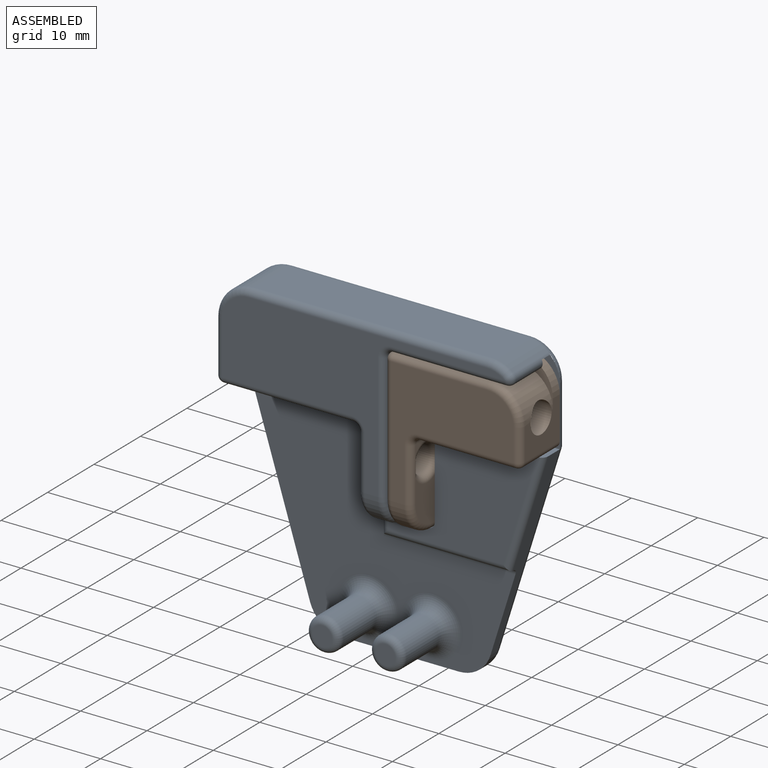
[diagram: assembled view]
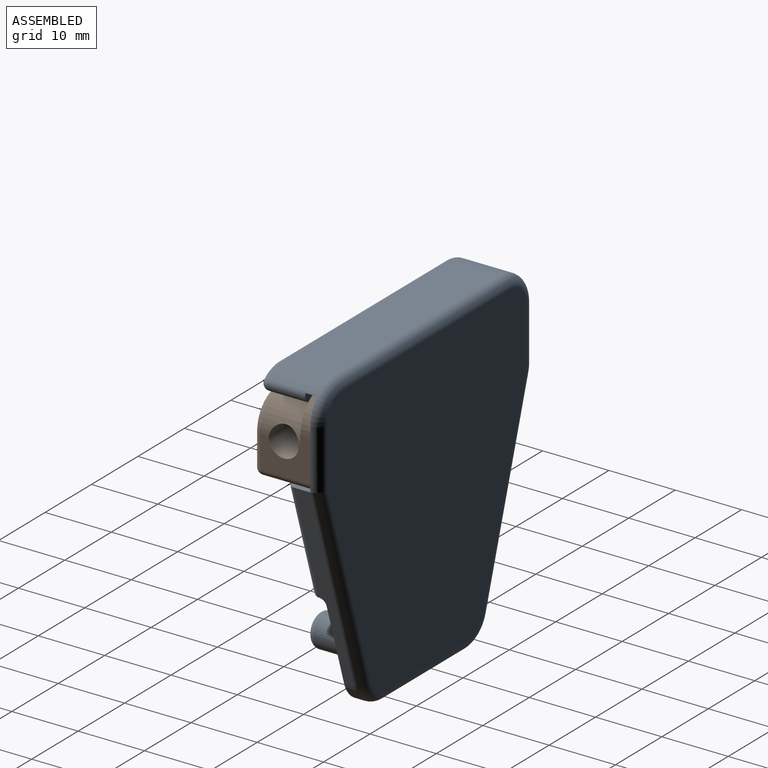
[diagram: assembled view, second angle]
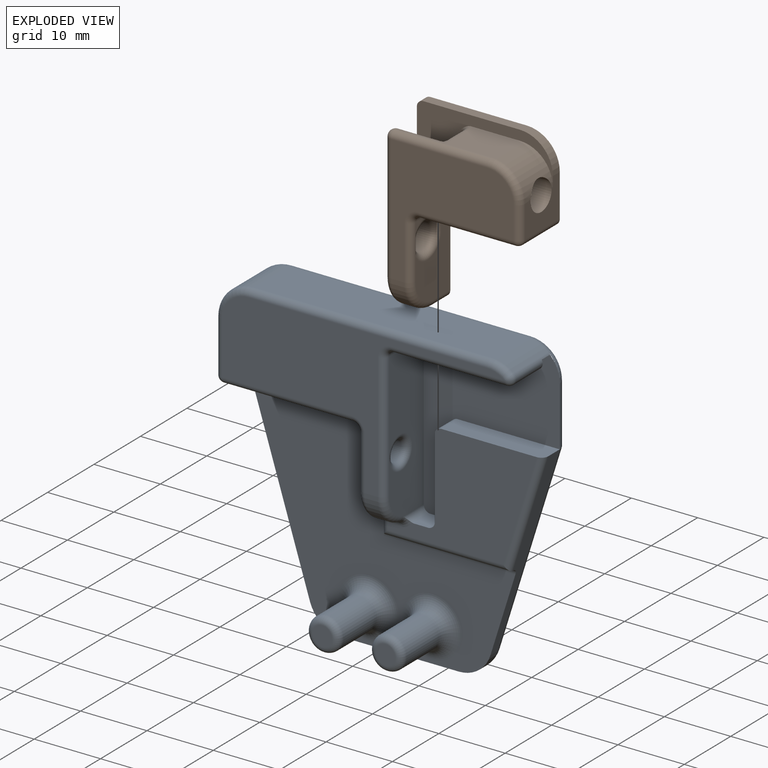
[diagram: exploded view]
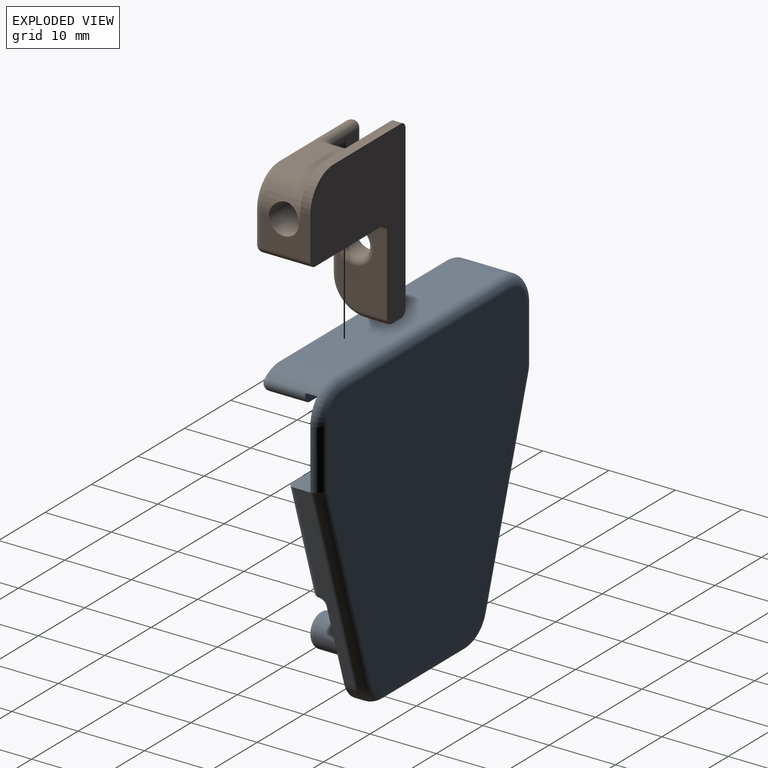
[diagram: exploded view, second angle]
ASSEMBLY  parts=2 mates=3
PART A: 100 faces, bbox 48.5x13.1x48.5 mm
  f0: plane 10.92x5mm, normal (-1,0,0), area 32.5mm2, adj f56,f57,f70,f83,f86
  f1: plane 12x5mm, normal (0,0,-1), area 60mm2, adj f50,f51,f59,f76
  f2: plane 17.15x5.75mm, normal (0,0,-1), area 98.6mm2, adj f19,f49,f52,f66
  f3: plane 29.27x9.18mm, normal (-0.95,0,-0.3), area 46mm2, adj f16,f30,f32,f39,f75
  f4: plane 17.65x1.5mm, normal (0,0,-1), area 26.5mm2, adj f16,f32,f33,f43
  f5: plane 30.13x9.53mm, normal (0.95,0,-0.3), area 65.2mm2, adj f10,f16,f33,f47,f79,f80
  f6: plane 42.65x22mm, normal (0,-1,0), area 318.6mm2, adj f31,f57,f58,f59,f61,f62,f63,f64
  f7: plane 36x7.5mm, normal (0,0,1), area 270mm2, adj f34,f35,f44,f63
  f8: plane 8.24x7.5mm, normal (-1,0,0), area 27.4mm2, adj f30,f35,f40,f50,f61,f72,f75
  f9: plane 44.5x43mm, normal (0,1,0), area 1580.2mm2, adj f38,f39,f40,f41,f42,f43,f44,f45
  f10: plane 15.53x3.63mm, normal (0,0,1), area 53.7mm2, adj f5,f14,f17,f55,f79
  f11: plane 25.5x7.5mm, normal (1,0,0), area 153.8mm2, adj f14,f18,f19,f52,f53,f68,f69,f71
  f12: plane 3.5x2.1mm, normal (0,0,1), area 7.3mm2, adj f14,f17,f53,f54
  f13: plane 12x3.5mm, normal (-1,0,0), area 42mm2, adj f14,f17,f54,f55
  f14: plane 26.75x20.5mm, normal (0,-1,0), area 311.9mm2, adj f10,f11,f12,f13,f18,f46,f48,f49
  f15: plane 14x5mm, normal (-1,0,0), area 39mm2, adj f57,f70,f83,f89,f90,f92
  f16: plane 43.5x40.09mm, normal (0,-1,0), area 689.8mm2, adj f3,f4,f5,f32,f33,f36,f37,f75
  f17: plane 22.45x16mm, normal (0,-1,0), area 216.8mm2, adj f10,f12,f13,f53,f54,f55,f79,f81
  f18: plane 19.01x1.75mm, normal (0,0,-1), area 33.3mm2, adj f11,f14,f19,f49
  f19: plane 19.15x2.5mm, normal (0,1,0), area 28.7mm2, adj f2,f11,f18,f49,f52
  f20: cylinder r=2.5mm len=7mm, axis (0,1,0), area 110mm2, adj f37,f74
  f21: plane 3x3mm, normal (0,-1,0), area 7.1mm2, adj f74
  f22: cylinder r=2.5mm len=7mm, axis (0,1,0), area 110mm2, adj f36,f73
  f23: plane 3x3mm, normal (0,-1,0), area 7.1mm2, adj f73
  f24: cylinder r=2.25mm len=9mm, axis (-1,0,0), area 127.2mm2, adj f25,f72
  f25: plane 4.5x4.5mm, normal (-1,0,0), area 12.8mm2, adj f24,f99
  f26: plane 9x5.5mm, normal (0,1,0), area 49.5mm2, adj f59,f87,f89,f96
  f27: plane 9x3mm, normal (1,0,0), area 23.9mm2, adj f51,f78,f87,f97,f99
  f28: plane 5.5x3mm, normal (0,0,-1), area 16.5mm2, adj f92,f93,f96,f97
  f29: cylinder r=1.5mm len=3mm, axis (1,0,0), area 18.8mm2, adj f70,f71
  f30: cylinder r=5mm len=2.27mm, axis (0,1,0), area 2.9mm2, adj f3,f8,f38,f75
  f31: cylinder r=5mm len=4.93mm, axis (1,0,0), area 14mm2, adj f6,f56,f69,f84
  f32: cylinder r=5mm len=4.77mm, axis (0,1,0), area 9.5mm2, adj f3,f4,f16,f41
  f33: cylinder r=5mm len=4.77mm, axis (0,-1,0), area 9.5mm2, adj f4,f5,f16,f45
  f34: cylinder r=5mm len=7.5mm, axis (0,1,0), area 27.1mm2, adj f7,f46,f49,f64
  f35: cylinder r=5mm len=7.5mm, axis (0,-1,0), area 58.9mm2, adj f7,f8,f42,f62
  f36: torus R=4.5mm, axis (0,-1,0), area 63.7mm2, adj f16,f22
  f37: torus R=4.5mm, axis (0,-1,0), area 63.7mm2, adj f16,f20
  f38: torus R=3.5mm, axis (0,-1,0), area 3.2mm2, adj f9,f30,f39,f40
  f39: cylinder r=1.5mm len=29.71mm, axis (0.3,0,-0.95), area 72.3mm2, adj f3,f9,f38,f41
  f40: cylinder r=1.5mm len=8.23mm, axis (0,0,-1), area 19.4mm2, adj f8,f9,f38,f42
  f41: torus R=3.5mm, axis (0,-1,0), area 13.3mm2, adj f9,f32,f39,f43
  f42: torus R=3.5mm, axis (0,-1,0), area 16.5mm2, adj f9,f35,f40,f44
  f43: cylinder r=1.5mm len=17.65mm, axis (1,0,0), area 41.6mm2, adj f4,f9,f41,f45
  f44: cylinder r=1.5mm len=36mm, axis (-1,0,0), area 84.8mm2, adj f7,f9,f42,f46
  f45: torus R=3.5mm, axis (0,-1,0), area 13.3mm2, adj f9,f33,f43,f47
  f46: torus R=3.5mm, axis (0,-1,0), area 16.5mm2, adj f9,f14,f34,f44,f48
  f47: cylinder r=1.5mm len=30.44mm, axis (0.3,0,0.95), area 73.8mm2, adj f5,f9,f45,f48
  f48: cylinder r=1.5mm len=9mm, axis (0,0,1), area 20.9mm2, adj f9,f14,f46,f47
  f49: cylinder r=1mm len=7.5mm, axis (0,1,0), area 14.5mm2, adj f2,f14,f18,f19,f34,f65
  f50: cylinder r=1mm len=5mm, axis (0,-1,0), area 7.9mm2, adj f1,f8,f60,f75
  f51: cylinder r=1mm len=5mm, axis (0,-1,0), area 6.3mm2, adj f1,f27,f77,f88
  f52: cylinder r=1mm len=5.75mm, axis (0,1,0), area 9mm2, adj f2,f11,f19,f67
  f53: cylinder r=1mm len=4.38mm, axis (0,1,0), area 5.9mm2, adj f11,f12,f14,f17,f81
  f54: cylinder r=1mm len=3.5mm, axis (0,1,0), area 5.5mm2, adj f12,f13,f14,f17
  f55: cylinder r=1mm len=3.5mm, axis (0,1,0), area 5.5mm2, adj f10,f13,f14,f17
  f56: torus R=4mm, axis (-1,0,0), area 10.2mm2, adj f0,f31,f57,f86
  f57: cylinder r=1mm len=8mm, axis (0,0,-1), area 12.6mm2, adj f0,f6,f15,f56,f58
  f58: torus R=2mm, axis (0,-1,0), area 3.4mm2, adj f6,f57,f59,f90
  f59: cylinder r=1mm len=19.5mm, axis (1,0,0), area 40.8mm2, adj f1,f6,f26,f58,f60,f88,f90
  f60: sphere r=1mm, area 1.6mm2, adj f50,f59,f61
  f61: cylinder r=1mm len=8mm, axis (0,0,1), area 12.6mm2, adj f6,f8,f60,f62
  f62: torus R=4mm, axis (0,-1,0), area 11.4mm2, adj f6,f35,f61,f63
  f63: cylinder r=1mm len=36mm, axis (1,0,0), area 56.5mm2, adj f6,f7,f62,f64
  f64: torus R=4mm, axis (0,-1,0), area 5.3mm2, adj f6,f34,f63,f65
  f65: sphere r=1mm, area 2.4mm2, adj f49,f64,f66
  f66: cylinder r=1mm len=17.15mm, axis (1,0,0), area 26.9mm2, adj f2,f6,f65,f67
  f67: torus R=2mm, axis (0,-1,0), area 3.4mm2, adj f6,f52,f66,f68
  f68: cylinder r=1mm len=19mm, axis (0,0,1), area 29.8mm2, adj f6,f11,f67,f69
  f69: torus R=4mm, axis (-1,0,0), area 9.9mm2, adj f11,f31,f68,f81
  f70: torus R=2.5mm, axis (-1,0,0), area 18.4mm2, adj f0,f15,f29
  f71: torus R=2.5mm, axis (-1,0,0), area 18.4mm2, adj f11,f29
  f72: torus R=3.25mm, axis (1,0,0), area 25.8mm2, adj f8,f24
  f73: torus R=1.5mm, axis (0,-1,0), area 21.1mm2, adj f22,f23
  f74: torus R=1.5mm, axis (0,-1,0), area 21.1mm2, adj f20,f21
  f75: torus R=2mm, axis (0,-1,0), area 1.7mm2, adj f3,f8,f16,f30,f50,f76
  f76: cylinder r=1mm len=12mm, axis (-1,0,0), area 18.8mm2, adj f1,f16,f75,f77
  f77: torus R=2mm, axis (0,-1,0), area 3.4mm2, adj f16,f51,f76,f78
  f78: cylinder r=1mm len=9mm, axis (0,0,-1), area 14.1mm2, adj f16,f27,f77,f95
  f79: cylinder r=1mm len=17.3mm, axis (-0.3,0,-0.95), area 27.2mm2, adj f5,f10,f17,f82
  f80: cylinder r=1mm len=20.17mm, axis (1,0,0), area 30.7mm2, adj f5,f16,f82,f83
  f81: bspline ~2.36x2.27mm, area 2.2mm2, adj f11,f17,f53,f69,f84
  f82: cylinder r=1mm len=19.17mm, axis (-1,0,0), area 28.8mm2, adj f17,f79,f80,f85
  f83: cylinder r=1mm len=28mm, axis (0,0,1), area 43.2mm2, adj f0,f15,f16,f80,f85,f91
  f84: cylinder r=1mm len=2mm, axis (1,0,0), area 2.8mm2, adj f17,f31,f81,f86
  f85: cylinder r=1mm len=2.08mm, axis (0,0,-1), area 2.5mm2, adj f17,f82,f83,f86
  f86: torus R=2mm, axis (-1,0,0), area 3mm2, adj f0,f56,f84,f85
  f87: cylinder r=1mm len=9mm, axis (0,0,-1), area 14.1mm2, adj f26,f27,f88,f98
  f88: bspline ~2x2mm, area 1.1mm2, adj f51,f59,f87
  f89: cylinder r=1mm len=9mm, axis (0,0,1), area 14.1mm2, adj f15,f26,f90,f94
  f90: torus R=2mm, axis (-1,0,0), area 3.4mm2, adj f15,f58,f59,f89
  f91: sphere r=1mm, area 2.1mm2, adj f83,f92,f93
  f92: cylinder r=1mm len=3mm, axis (0,1,0), area 4.7mm2, adj f15,f28,f91,f94
  f93: cylinder r=1mm len=5.5mm, axis (-1,0,0), area 8.6mm2, adj f16,f28,f91,f95
  f94: sphere r=1mm, area 1.6mm2, adj f89,f92,f96
  f95: sphere r=1mm, area 1mm2, adj f78,f93,f97
  f96: cylinder r=1mm len=5.5mm, axis (-1,0,0), area 8.6mm2, adj f26,f28,f94,f98
  f97: cylinder r=1mm len=3mm, axis (0,1,0), area 4.7mm2, adj f27,f28,f95,f98
  f98: sphere r=1mm, area 1.6mm2, adj f87,f96,f97
  f99: cylinder r=1mm len=4mm, axis (-1,0,0), area 25.1mm2, adj f25,f27
PART B: 51 faces, bbox 23.2x9.7x27.3 mm
  f0: plane 24.87x7.87mm, normal (-1,0,0), area 103mm2, adj f7,f9,f12,f19,f28,f30,f32,f37
  f1: plane 7.5x6.4mm, normal (1,0,0), area 30.2mm2, adj f7,f9,f13,f16,f18,f20,f29
  f2: plane 14.5x1.5mm, normal (0,0,1), area 21.7mm2, adj f7,f9,f18,f19
  f3: plane 19x18.5mm, normal (0,-1,0), area 182.3mm2, adj f17,f24,f25,f26,f29,f31,f32,f33
  f4: plane 3.5x2mm, normal (0,0,-1), area 7mm2, adj f7,f17,f21,f28
  f5: plane 12.1x7.5mm, normal (1,0,0), area 60.2mm2, adj f7,f21,f22,f23,f24,f35
  f6: plane 14.5x7.5mm, normal (0,0,-1), area 108.7mm2, adj f7,f20,f23,f26
  f7: plane 26.5x20.5mm, normal (0,1,0), area 304.6mm2, adj f0,f1,f2,f4,f5,f6,f18,f19
  f8: plane 7.27x6mm, normal (0,0,1), area 42.1mm2, adj f9,f16,f33,f45,f47
  f9: plane 20.87x8.87mm, normal (0,-1,0), area 76.6mm2, adj f0,f1,f2,f8,f16,f18,f19,f40
  f10: plane 6x5.5mm, normal (0,1,0), area 33mm2, adj f32,f33,f44,f48
  f11: plane 6x3mm, normal (-1,0,0), area 14.9mm2, adj f39,f42,f47,f48,f50
  f12: plane 6.5x3.27mm, normal (0,0,1), area 19.6mm2, adj f0,f39,f40,f43,f44
  f13: cylinder r=2.25mm len=10mm, axis (1,0,0), area 139.9mm2, adj f1,f14,f16
  f14: plane 4.5x4.5mm, normal (1,0,0), area 12.8mm2, adj f13,f50
  f15: cylinder r=2mm len=4mm, axis (-1,0,0), area 25.1mm2, adj f35,f36,f37,f38
  f16: cylinder r=5mm len=6mm, axis (0,-1,0), area 39.9mm2, adj f1,f8,f9,f13,f31
  f17: cylinder r=5mm len=5mm, axis (-1,0,0), area 15.7mm2, adj f3,f4,f22,f30
  f18: cylinder r=5mm len=5mm, axis (0,1,0), area 11.8mm2, adj f1,f2,f7,f9
  f19: cylinder r=1mm len=1.5mm, axis (0,1,0), area 2.4mm2, adj f0,f2,f7,f9
  f20: cylinder r=1mm len=7.5mm, axis (0,1,0), area 11.8mm2, adj f1,f6,f7,f27
  f21: cylinder r=1mm len=3.5mm, axis (0,1,0), area 5.5mm2, adj f4,f5,f7,f22
  f22: torus R=4mm, axis (1,0,0), area 11.4mm2, adj f5,f17,f21,f24
  f23: cylinder r=1mm len=7.5mm, axis (0,-1,0), area 11.8mm2, adj f5,f6,f7,f25
  f24: cylinder r=1mm len=8.1mm, axis (0,0,-1), area 12.7mm2, adj f3,f5,f22,f25,f36
  f25: torus R=2mm, axis (0,-1,0), area 3.4mm2, adj f3,f23,f24,f26
  f26: cylinder r=1mm len=14.5mm, axis (-1,0,0), area 22.8mm2, adj f3,f6,f25,f27
  f27: sphere r=1mm, area 1.6mm2, adj f20,f26,f29
  f28: cylinder r=1mm len=3.5mm, axis (0,1,0), area 5.5mm2, adj f0,f4,f7,f30
  f29: cylinder r=1mm len=4.9mm, axis (0,0,-1), area 7.7mm2, adj f1,f3,f27,f31
  f30: torus R=4mm, axis (-1,0,0), area 11.4mm2, adj f0,f17,f28,f32
  f31: torus R=4mm, axis (0,-1,0), area 11.4mm2, adj f3,f16,f29,f33
  f32: cylinder r=1mm len=19mm, axis (0,0,1), area 39.3mm2, adj f0,f3,f10,f30,f34,f38,f43
  f33: cylinder r=1mm len=14.5mm, axis (-1,0,0), area 32.6mm2, adj f3,f8,f10,f31,f34,f49
  f34: sphere r=1mm, area 3.1mm2, adj f32,f33
  f35: torus R=3mm, axis (1,0,0), area 19mm2, adj f5,f15,f36
  f36: bspline ~3.71x1.12mm, area 3.2mm2, adj f15,f24,f35
  f37: torus R=3mm, axis (-1,0,0), area 19mm2, adj f0,f15,f38
  f38: bspline ~3.71x1.12mm, area 3.2mm2, adj f15,f32,f37
  f39: cylinder r=1mm len=3mm, axis (0,1,0), area 4.7mm2, adj f11,f12,f41,f46
  f40: cylinder r=1mm len=6.5mm, axis (1,0,0), area 10.2mm2, adj f0,f9,f12,f41
  f41: sphere r=1mm, area 1.6mm2, adj f39,f40,f42
  f42: cylinder r=1mm len=6mm, axis (0,0,1), area 9.4mm2, adj f9,f11,f41,f45
  f43: torus R=2mm, axis (0,0,1), area 2.1mm2, adj f0,f12,f32,f44
  f44: cylinder r=1mm len=5.5mm, axis (1,0,0), area 8.6mm2, adj f10,f12,f43,f46
  f45: torus R=2mm, axis (0,0,1), area 2.1mm2, adj f8,f9,f42,f47
  f46: sphere r=1mm, area 1.6mm2, adj f39,f44,f48
  f47: cylinder r=1mm len=5mm, axis (0,-1,0), area 5.9mm2, adj f8,f11,f45,f49
  f48: cylinder r=1mm len=6mm, axis (0,0,-1), area 9.4mm2, adj f10,f11,f46,f49
  f49: bspline ~2x2mm, area 1.9mm2, adj f33,f47,f48
  f50: cylinder r=1mm len=3mm, axis (1,0,0), area 18.8mm2, adj f11,f14
PLACE A t=(44.06,27.46,13.43)mm
PLACE B t=(46.56,25.96,11.93)mm
MATE planar A.f18 <-> B.f2  axis (0,0,-1) through (56.07,25.08,11.93)mm
MATE planar A.f14 <-> B.f7  axis (0,-1,0) through (55.26,25.96,3.24)mm
MATE planar A.f11 <-> B.f0  axis (1,0,0) through (46.56,22.51,-1.15)mm
